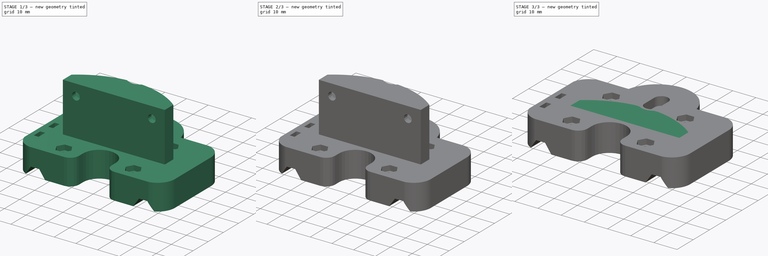
[diagram: build sequence overview — one tinted view per stage of 3, left to right]
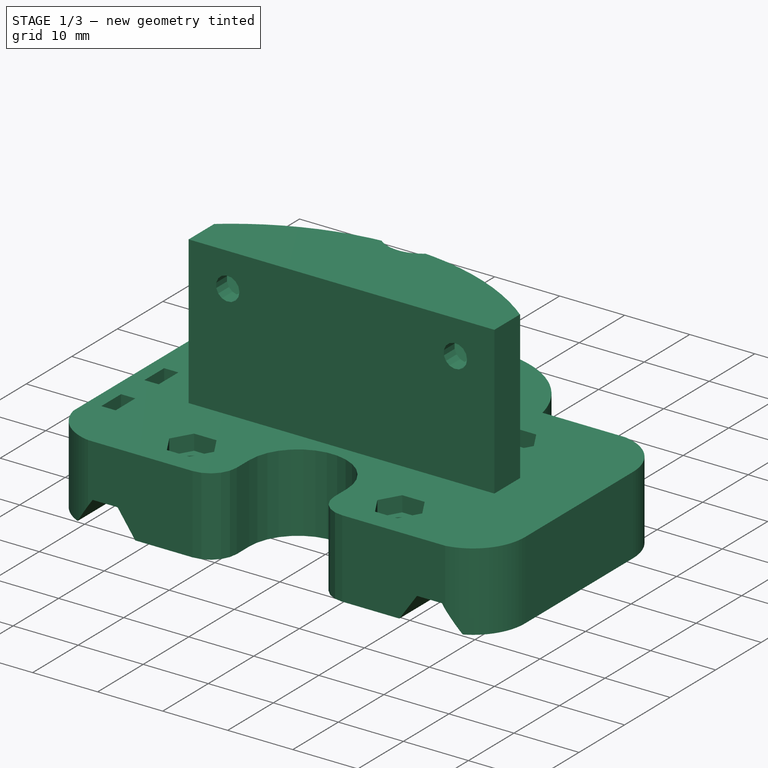
[diagram: stage 1 of 3 — iso view after this stage's code; geometry added in this stage tinted green]
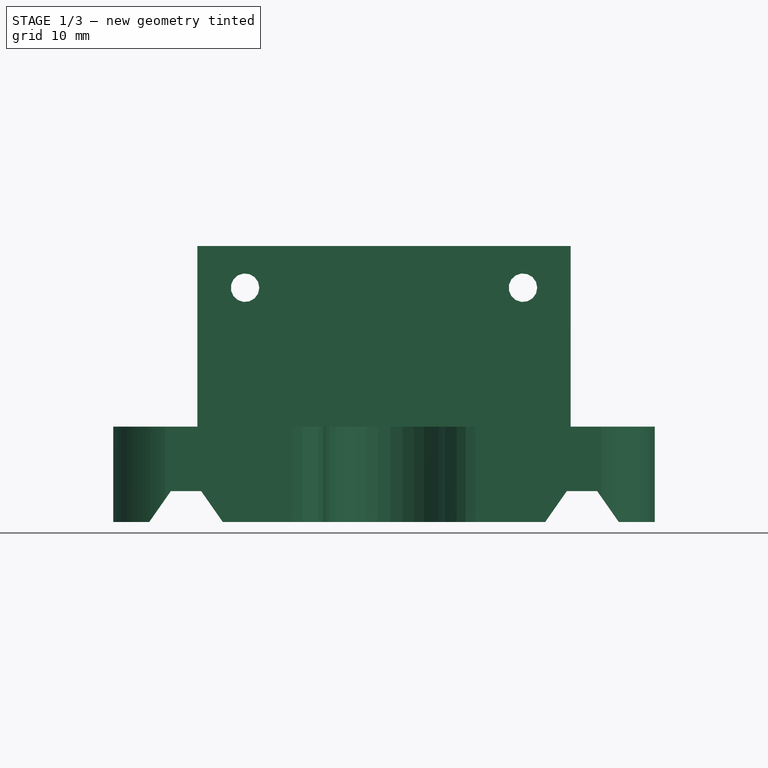
[diagram: stage 1 of 3 — front view after this stage's code; geometry added in this stage tinted green]
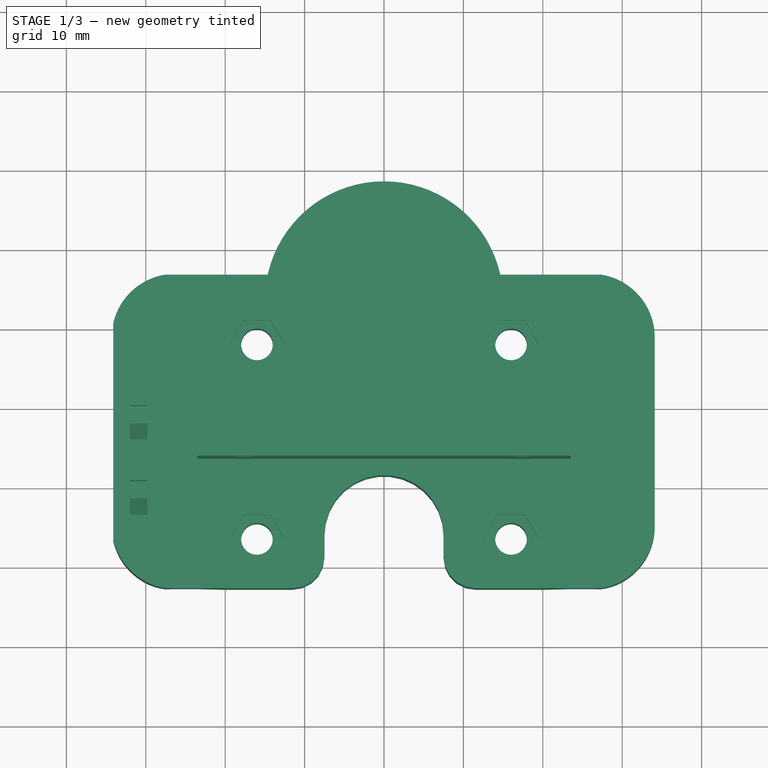
[diagram: stage 1 of 3 — top view after this stage's code; geometry added in this stage tinted green]
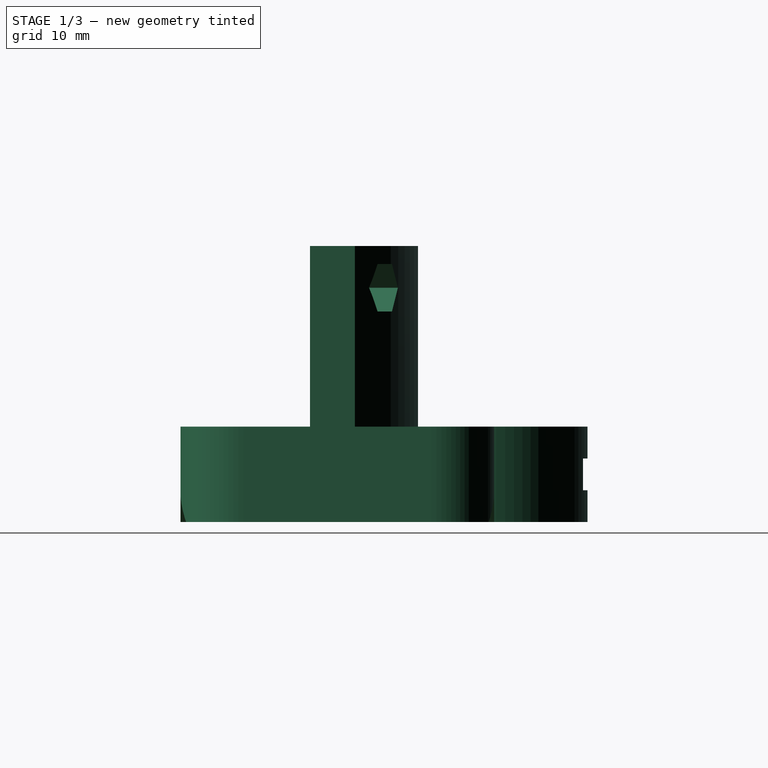
[diagram: stage 1 of 3 — right view after this stage's code; geometry added in this stage tinted green]
FCSTD DOCUMENT  (FreeCAD 0.14R2800 (Git))
Label: M5-xend-101-v2
License: CC-BY 3.0
LicenseURL: http://creativecommons.org/licenses/by/3.0/
objects: Sketcher::SketchObject×6, PartDesign::Pocket×4, PartDesign::Pad×2, Part::Feature×1
note: 19 computed .brp shape members not serialized (recipe doc carries the construction recipe); baked Part::Feature solids carry a one-line shape summary decoded from their .brp

FEATURE [Part::Feature] Solid  label="ao101-xend"
  shape: bbox 68.2 x 51.25 x 34.75 mm, 631 faces (baked)
FEATURE [Sketcher::SketchObject] Sketch
  ExternalGeometry = -> [Solid]
  Placement = pos=(0,0,-4.5) rot=(1,0,0;3.14159rad)
  Support = -> Solid [Face9]
  sketch-geometry (10):
    g0: LineSegment [constr] StartX=-9.95929 StartY=-5.75 StartZ=0 EndX=9.95929 EndY=-20.25 EndZ=0
    g1: LineSegment [constr] StartX=-9.95929 StartY=-20.25 StartZ=0 EndX=9.95929 EndY=-5.75 EndZ=0
    g2: GeomPoint [constr] X=0 Y=-13 Z=0
    g3: LineSegment [constr] StartX=7.1761e-08 StartY=-26 StartZ=0 EndX=0 EndY=0 EndZ=0
    g4: LineSegment StartX=-9.95929 StartY=-5.75 StartZ=0 EndX=-9.95929 EndY=-20.25 EndZ=0
    g5: LineSegment StartX=-9.95929 StartY=-20.25 StartZ=0 EndX=7.1761e-08 EndY=-26 EndZ=0
    g6: LineSegment StartX=7.1761e-08 StartY=-26 StartZ=0 EndX=9.95929 EndY=-20.25 EndZ=0
    g7: LineSegment StartX=9.95929 StartY=-20.25 StartZ=0 EndX=9.95929 EndY=-5.75 EndZ=0
    g8: LineSegment StartX=9.95929 StartY=-5.75 StartZ=0 EndX=-7.1761e-08 EndY=-1.24293e-07 EndZ=0
    g9: LineSegment StartX=-7.1761e-08 StartY=-1.24293e-07 StartZ=0 EndX=-9.95929 EndY=-5.75 EndZ=0
  constraints (20):
    c: Coincident(g0,g-5)
    c: Coincident(g0,g-6)
    c: Coincident(g1,g-8)
    c: Coincident(g1,g-4)
    c: PointOnObject(g2,g1)
    c: PointOnObject(g2,g0)
    c: Coincident(g3,g-7)
    c: Coincident(g3,g-1)
    c: Coincident(g0,g4)
    c: Coincident(g4,g1)
    c: Coincident(g4,g5)
    c: Coincident(g5,g3)
    c: Coincident(g5,g6)
    c: Coincident(g6,g0)
    c: Coincident(g6,g7)
    c: Coincident(g7,g1)
    c: Coincident(g7,g8)
    c: Coincident(g8,g-3)
    c: Coincident(g8,g9)
    c: Coincident(g9,g0)
FEATURE [PartDesign::Pad] Pad
  Length = 12
  Length2 = 100
  Reversed = true
  Sketch = -> Sketch
  Type = 0
  UpToFace = -> Solid [Face629]
FEATURE [Sketcher::SketchObject] Sketch003
  ExternalGeometry = -> [Pad]
  Placement = pos=(0,16.75,0) rot=(0,0.707107,0.707107;3.14159rad)
  Support = -> Pad [Face107]
  sketch-geometry (10):
    g0: LineSegment [constr] StartX=1.17689 StartY=7.5 StartZ=0 EndX=-1.17689 EndY=-4.5 EndZ=0
    g1: LineSegment [constr] StartX=-1.17689 StartY=7.5 StartZ=0 EndX=1.17689 EndY=-4.5 EndZ=0
    g2: GeomPoint [constr] X=0 Y=1.5 Z=0
    g3: LineSegment StartX=-4 StartY=-0.5 StartZ=0 EndX=4 EndY=-0.5 EndZ=0
    g4: LineSegment StartX=4 StartY=-0.5 StartZ=0 EndX=4 EndY=3.5 EndZ=0
    g5: LineSegment StartX=4 StartY=3.5 StartZ=0 EndX=-4 EndY=3.5 EndZ=0
    g6: LineSegment StartX=-4 StartY=3.5 StartZ=0 EndX=-4 EndY=-0.5 EndZ=0
    g7: LineSegment [constr] StartX=4 StartY=3.5 StartZ=0 EndX=-4 EndY=-0.5 EndZ=0
    g8: LineSegment [constr] StartX=-4 StartY=3.5 StartZ=0 EndX=4 EndY=-0.5 EndZ=0
    g9: GeomPoint [constr] X=0 Y=1.5 Z=0
  constraints (23):
    c: Coincident(g0,g-6)
    c: Coincident(g0,g-7)
    c: Coincident(g1,g-7)
    c: Coincident(g1,g-6)
    c: PointOnObject(g2,g1)
    c: PointOnObject(g2,g0)
    c: Coincident(g3,g4)
    c: Coincident(g4,g5)
    c: Coincident(g5,g6)
    c: Coincident(g6,g3)
    c: Horizontal(g3)
    c: Horizontal(g5)
    c: Vertical(g4)
    c: Vertical(g6)
    c: Coincident(g7,g4)
    c: Coincident(g7,g3)
    c: Coincident(g8,g5)
    c: Coincident(g8,g3)
    c: PointOnObject(g9,g8)
    c: PointOnObject(g9,g7)
    c: Coincident(g9,g2)
    c: Distance(g4) = 4
    c: Distance(g3) = 8
FEATURE [PartDesign::Pocket] Pocket
  Length = 24
  Midplane = true
  Sketch = -> Sketch003
  Type = 0
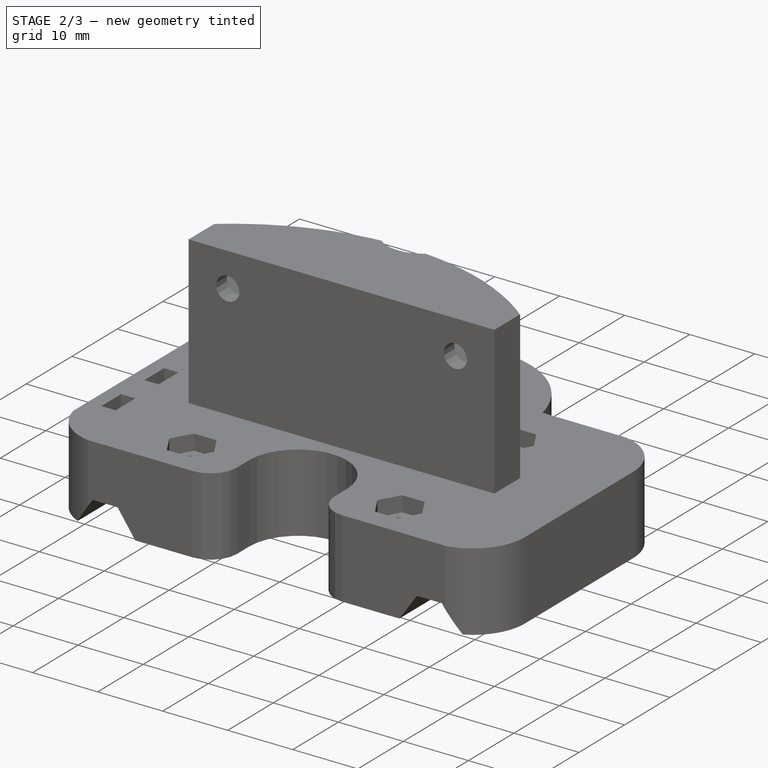
[diagram: stage 2 of 3 — iso view after this stage's code; geometry added in this stage tinted green]
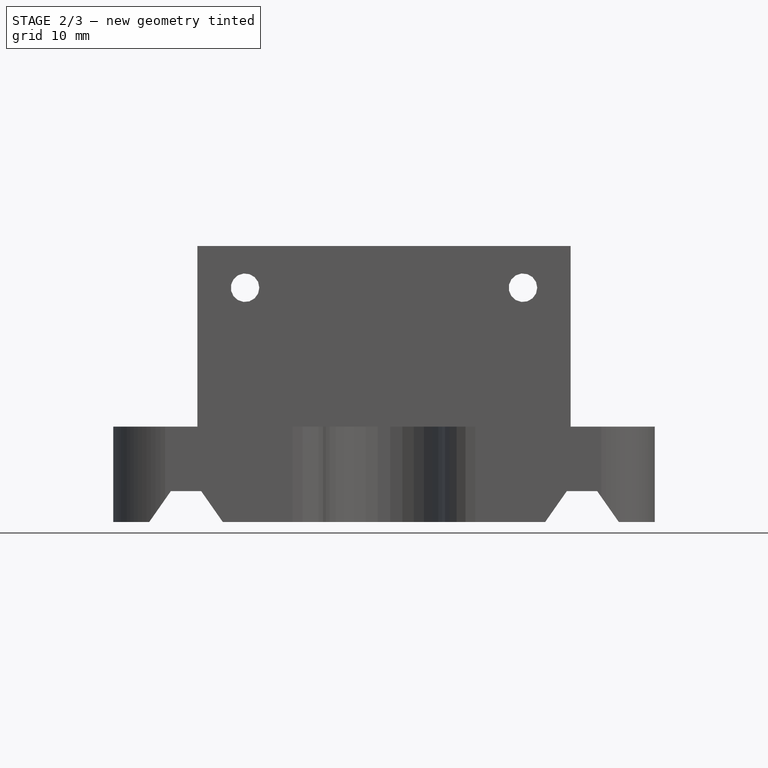
[diagram: stage 2 of 3 — front view after this stage's code; geometry added in this stage tinted green]
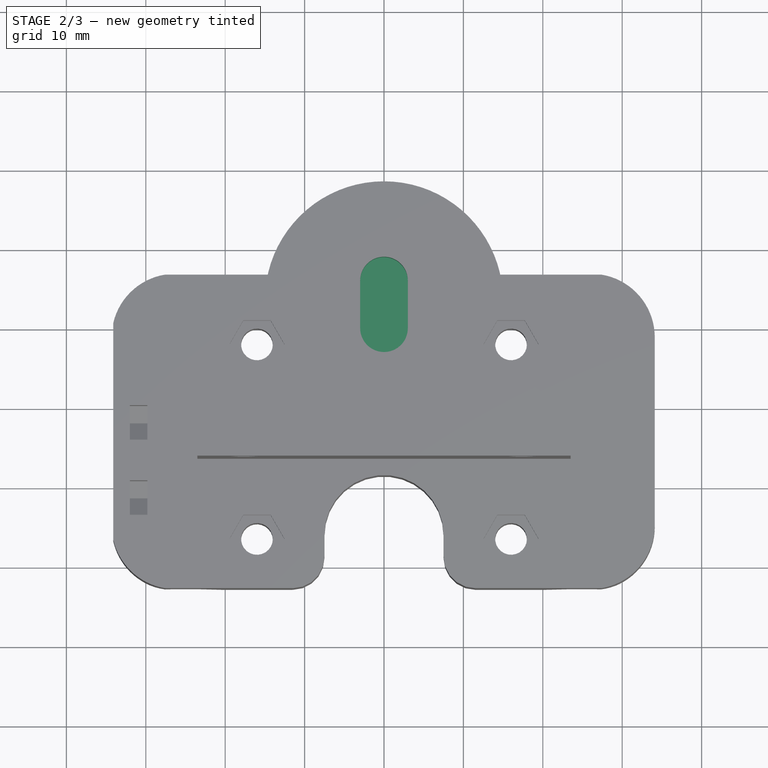
[diagram: stage 2 of 3 — top view after this stage's code; geometry added in this stage tinted green]
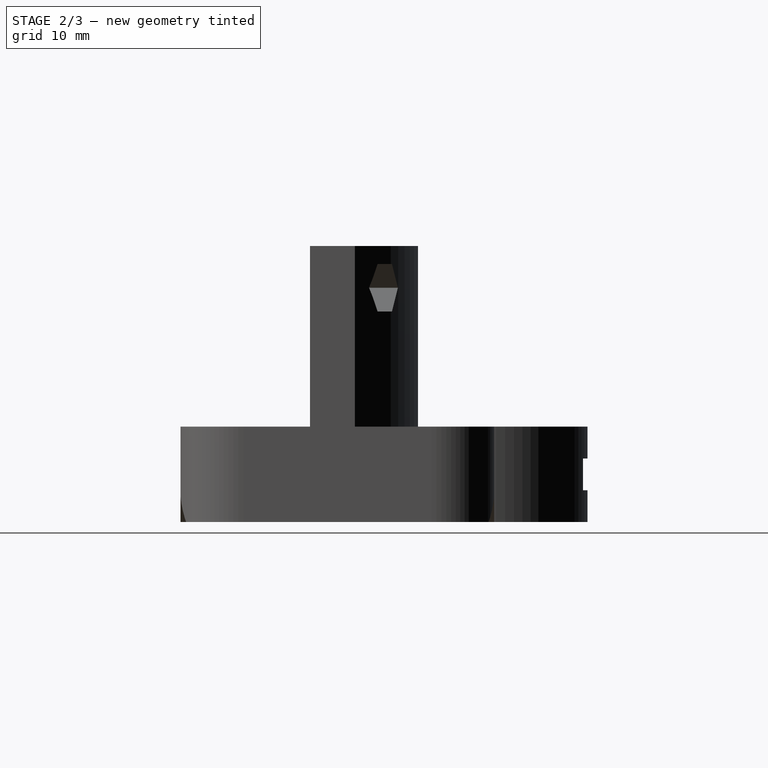
[diagram: stage 2 of 3 — right view after this stage's code; geometry added in this stage tinted green]
FEATURE [Sketcher::SketchObject] Sketch004
  ExternalGeometry = -> [Pocket]
  Placement = pos=(0,0,7.5) rot=(0,0,1;0rad)
  Support = -> Pocket [Face432]
  sketch-geometry (9):
    g0: LineSegment [constr] StartX=-9.95929 StartY=5.75 StartZ=0 EndX=9.95929 EndY=20.25 EndZ=0
    g1: LineSegment [constr] StartX=9.95929 StartY=5.75 StartZ=0 EndX=-9.95929 EndY=20.25 EndZ=0
    g2: LineSegment StartX=-3 StartY=10 StartZ=0 EndX=-3 EndY=16 EndZ=0
    g3: LineSegment StartX=3 StartY=16 StartZ=0 EndX=3 EndY=10 EndZ=0
    g4: LineSegment [constr] StartX=7.1761e-08 StartY=26 StartZ=0 EndX=7.1761e-08 EndY=0.00415402 EndZ=0
    g5: ArcOfCircle CenterX=7.1761e-08 CenterY=16 CenterZ=0 NormalX=0 NormalY=0 NormalZ=1 Radius=3 StartAngle=0 EndAngle=3.14159
    g6: ArcOfCircle CenterX=7.1761e-08 CenterY=9.99999 CenterZ=0 NormalX=0 NormalY=0 NormalZ=1 Radius=3 StartAngle=3.14159 EndAngle=6.28319
    g7: LineSegment [constr] StartX=-3 StartY=16 StartZ=0 EndX=3 EndY=16 EndZ=0
    g8: GeomPoint [constr] X=0 Y=13 Z=0
  constraints (24):
    c: Coincident(g0,g-7)
    c: Coincident(g0,g-4)
    c: Coincident(g1,g-8)
    c: Coincident(g1,g-6)
    c: Vertical(g2)
    c: Vertical(g3)
    c: Coincident(g4,g-5)
    c: Vertical(g4)
    c: PointOnObject(g5,g4)
    c: PointOnObject(g6,g4)
    c: Equal(g6,g5)
    c: Radius(g5) = 3
    c: Coincident(g6,g2)
    c: Coincident(g5,g3)
    c: Coincident(g5,g2)
    c: Coincident(g7,g2)
    c: Coincident(g7,g3)
    c: PointOnObject(g5,g7)
    c: Coincident(g6,g3)
    c: PointOnObject(g8,g1)
    c: PointOnObject(g8,g0)
    c: Symmetric(g5,g6,g8)
    c: Perpendicular(g4,g7)
    c: Distance(g3) = 6
FEATURE [PartDesign::Pocket] Pocket001  label="Larga"
  Length = 0
  Sketch = -> Sketch004
  Type = 3
  UpToFace = -> Pocket [Face226]
FEATURE [Sketcher::SketchObject] Sketch006
  ExternalGeometry = -> [Pocket001]
  Placement = pos=(0,0,3.5) rot=(1,0,0;3.14159rad)
  Support = -> Pocket001 [Face382]
  sketch-geometry (4):
    g0: ArcOfCircle CenterX=7.1761e-08 CenterY=-16 CenterZ=0 NormalX=0 NormalY=0 NormalZ=1 Radius=3 StartAngle=3.14159 EndAngle=6.28319
    g1: ArcOfCircle CenterX=7.1761e-08 CenterY=-9.99999 CenterZ=0 NormalX=0 NormalY=0 NormalZ=1 Radius=3 StartAngle=6.28318 EndAngle=9.42478
    g2: LineSegment StartX=-3 StartY=-10 StartZ=0 EndX=-3 EndY=-16 EndZ=0
    g3: LineSegment StartX=3 StartY=-16 StartZ=0 EndX=3 EndY=-10 EndZ=0
  constraints (10):
    c: Coincident(g0,g-6)
    c: Coincident(g0,g-6)
    c: Coincident(g0,g-6)
    c: Coincident(g1,g-5)
    c: Coincident(g1,g-5)
    c: Coincident(g1,g-5)
    c: Coincident(g2,g1)
    c: Coincident(g2,g0)
    c: Coincident(g3,g0)
    c: Coincident(g3,g1)
FEATURE [PartDesign::Pad] Pad001  label="Larga2"
  Length = 0.25
  Length2 = 100
  Reversed = true
  Sketch = -> Sketch006
  Type = 0
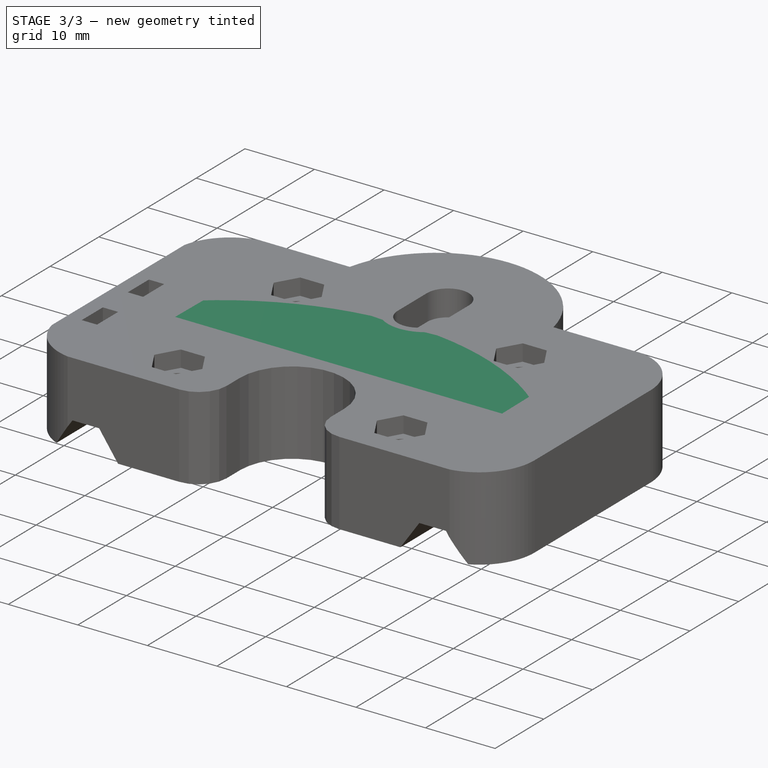
[diagram: stage 3 of 3 — iso view after this stage's code; geometry added in this stage tinted green]
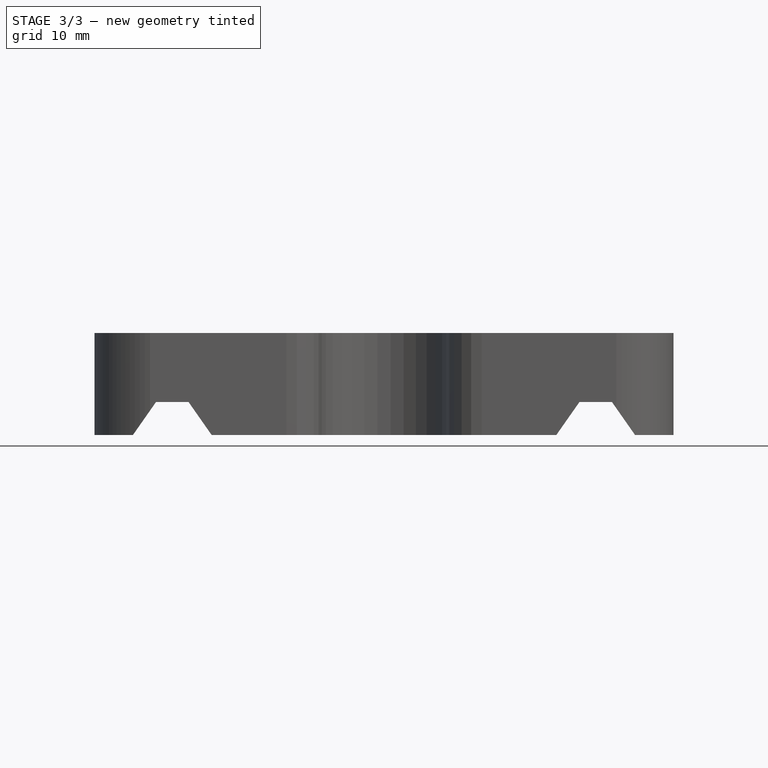
[diagram: stage 3 of 3 — front view after this stage's code; geometry added in this stage tinted green]
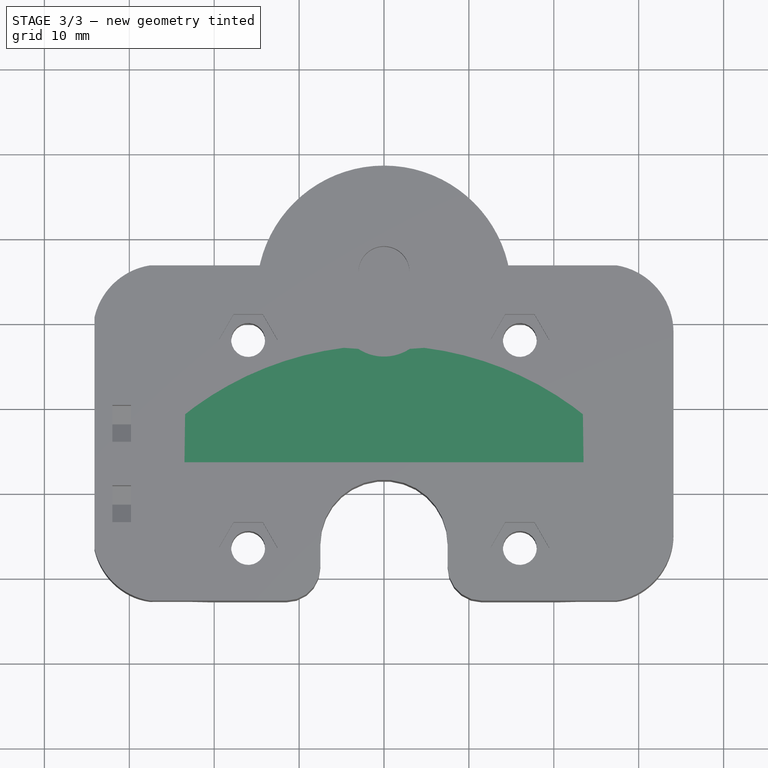
[diagram: stage 3 of 3 — top view after this stage's code; geometry added in this stage tinted green]
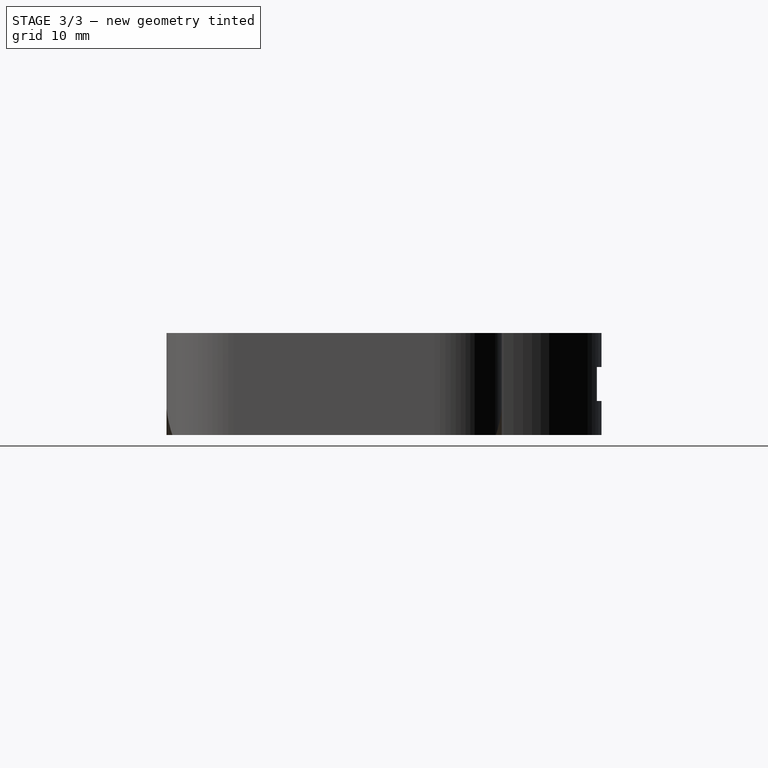
[diagram: stage 3 of 3 — right view after this stage's code; geometry added in this stage tinted green]
FEATURE [Sketcher::SketchObject] Sketch005
  ExternalGeometry = -> [Pocket001]
  Placement = pos=(0,0,30.25) rot=(0,0,1;0rad)
  Support = -> Pocket001 [Face391]
  sketch-geometry (4):
    g0: LineSegment StartX=-23.5 StartY=9.28559 StartZ=0 EndX=23.5 EndY=9.28559 EndZ=0
    g1: LineSegment StartX=23.5 StartY=9.28559 StartZ=0 EndX=23.5 EndY=-6.45 EndZ=0
    g2: LineSegment StartX=23.5 StartY=-6.45 StartZ=0 EndX=-23.5 EndY=-6.45 EndZ=0
    g3: LineSegment StartX=-23.5 StartY=-6.45 StartZ=0 EndX=-23.5 EndY=9.28559 EndZ=0
  constraints (10):
    c: Coincident(g0,g1)
    c: Coincident(g1,g2)
    c: Coincident(g2,g3)
    c: Coincident(g3,g0)
    c: Horizontal(g0)
    c: Horizontal(g2)
    c: Vertical(g1)
    c: Vertical(g3)
    c: Coincident(g1,g-4)
    c: Coincident(g2,g-3)
FEATURE [PartDesign::Pocket] Pocket002  label="corta"
  Length = 0
  Sketch = -> Sketch005
  Type = 3
  UpToFace = -> Pocket001 [Face33]
FEATURE [Sketcher::SketchObject] Sketch007
  ExternalGeometry = -> [Pad001]
  Placement = pos=(0,0,30.25) rot=(0,0,1;0rad)
  Support = -> Pad001 [Face391]
  sketch-geometry (4):
    g0: LineSegment StartX=-23.5 StartY=-6.45 StartZ=0 EndX=23.5 EndY=-6.45 EndZ=0
    g1: LineSegment StartX=23.5 StartY=-6.45 StartZ=0 EndX=23.5 EndY=8.15226 EndZ=0
    g2: LineSegment StartX=23.5 StartY=8.15226 StartZ=0 EndX=-23.5 EndY=8.15226 EndZ=0
    g3: LineSegment StartX=-23.5 StartY=8.15226 StartZ=0 EndX=-23.5 EndY=-6.45 EndZ=0
  constraints (9):
    c: Coincident(g-4,g0)
    c: Coincident(g0,g-3)
    c: Coincident(g0,g1)
    c: Vertical(g1)
    c: Coincident(g1,g2)
    c: Horizontal(g2)
    c: Coincident(g2,g3)
    c: Coincident(g3,g0)
    c: Vertical(g3)
FEATURE [PartDesign::Pocket] Pocket003
  Length = 0
  Sketch = -> Sketch007
  Type = 3
  UpToFace = -> Pad001 [Face33]
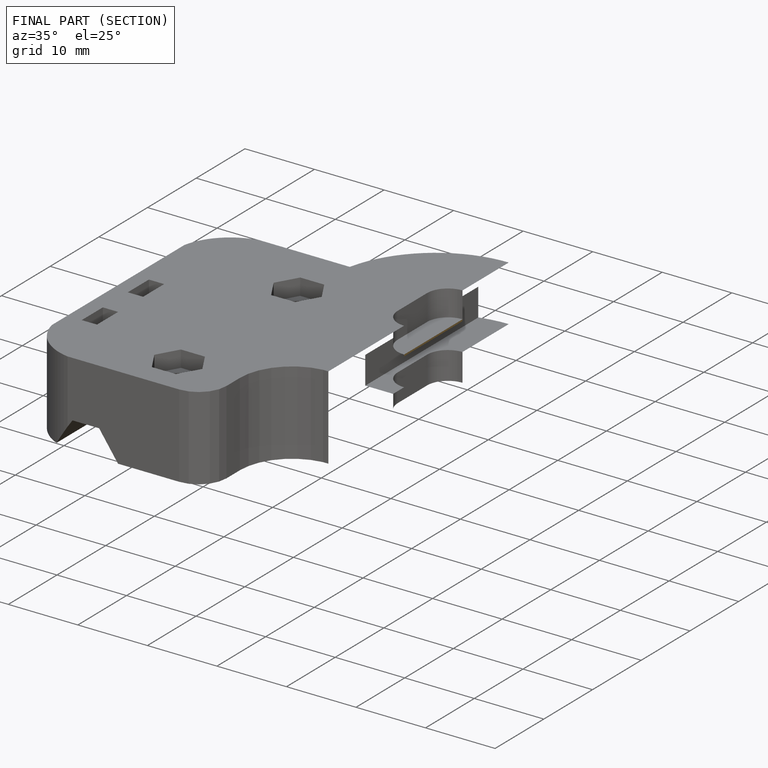
[diagram: finished part — half-section view (interior)]
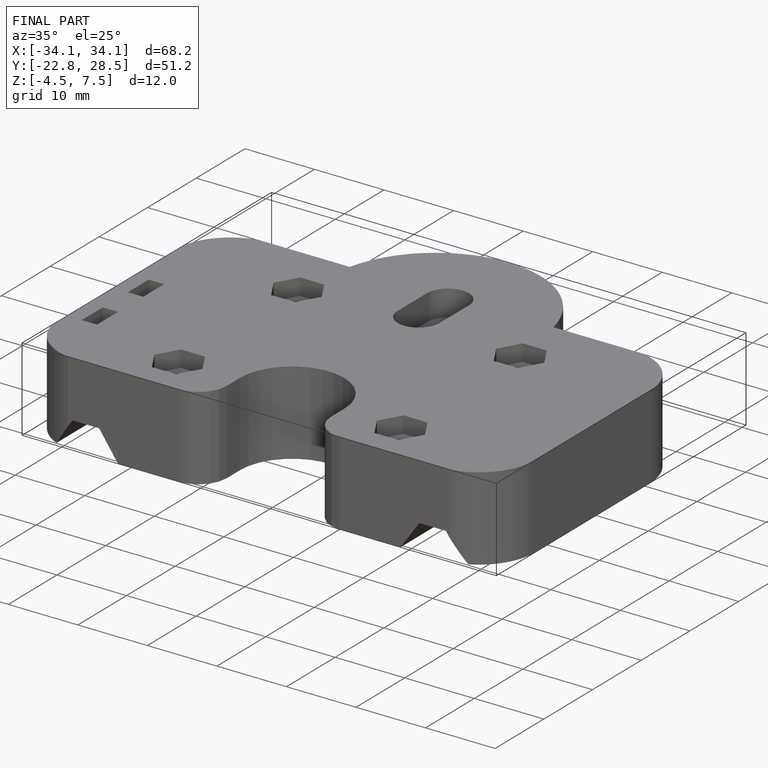
[diagram: finished part — iso view with bounding-box wireframe]
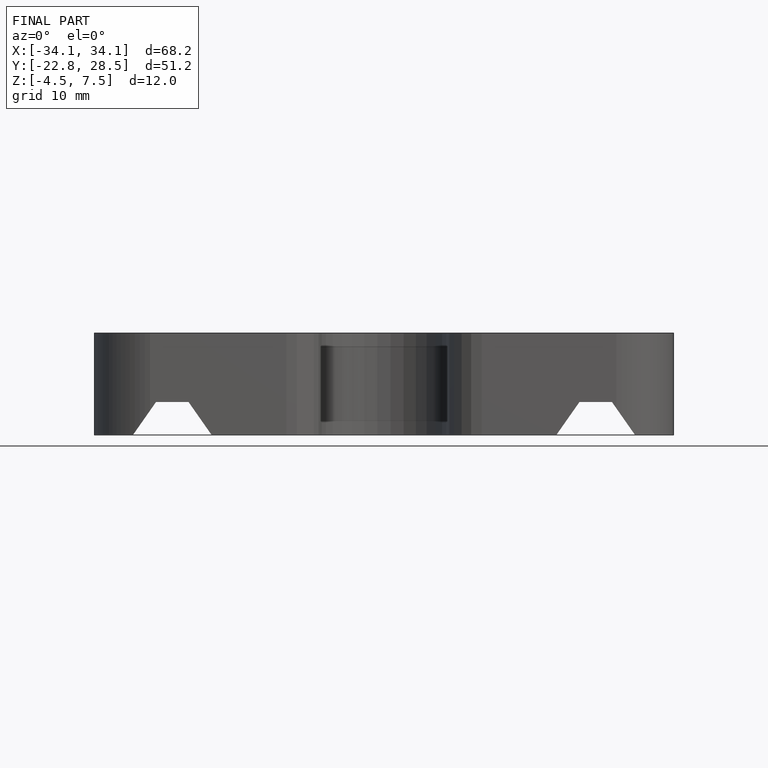
[diagram: finished part — front view with bounding-box wireframe]
